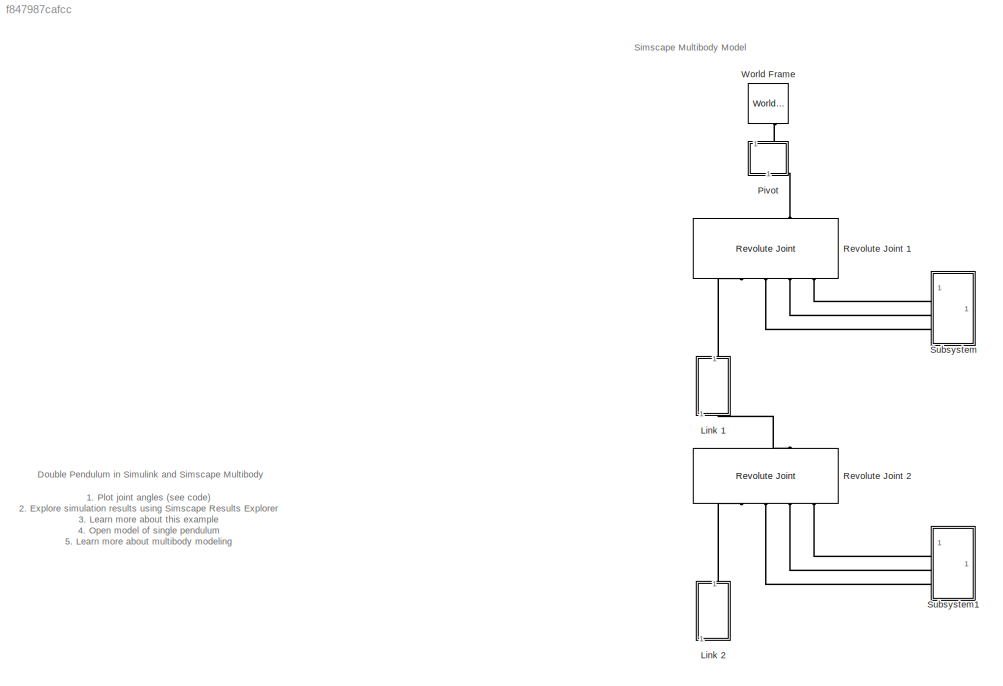
MODEL slx_f847987cafcc
KIND model
CONFIG AbsTol = auto
CONFIG EnableMultiTasking = on
CONFIG FixedStep = auto
CONFIG MaxStep = 1e-2
CONFIG MinStep = auto
CONFIG RelTol = 1e-3
CONFIG SampleTimeConstraint = Unconstrained
CONFIG SolverName = ode15s
CONFIG StartTime = 0.0
CONFIG StopTime = runtime
WORKSPACE source: MATLAB code (in-file)
WORKSPACE m1 = 2
WORKSPACE m2 = 3
WORKSPACE L1 = 1.2
WORKSPACE L2 = 1.6
WORKSPACE g = 9.81
WORKSPACE theta1_0 = 22.5
WORKSPACE theta2_0 = -22.5
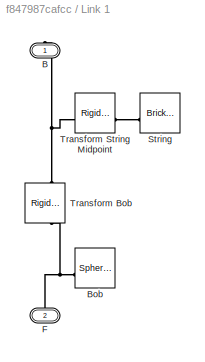
BLOCK [SubSystem] Link 1
  NameLocation = right
  Tag = CustomStyle
BLOCK [PMIOPort] Link 1/B
  NameLocation = right
  Side = Right
BLOCK [Reference] Link 1/Bob  REF=sm_lib/Body Elements/Spherical Solid
  SourceBlock = sm_lib/Body Elements/Spherical Solid
  SourceType = Spherical Solid
BLOCK [PMIOPort] Link 1/F
  NameLocation = right
  Port = 2
  Side = Left
BLOCK [Reference] Link 1/String  REF=sm_lib/Body Elements/Brick Solid
  SourceBlock = sm_lib/Body Elements/Brick Solid
  SourceType = Brick Solid
BLOCK [Reference] Link 1/Transform Bob   REF=sm_lib/Frames and
Transforms/Rigid
Transform
  NameLocation = right
  SourceBlock = sm_lib/Frames and\nTransforms/Rigid\nTransform
  SourceType = Rigid\nTransform
BLOCK [Reference] Link 1/Transform String Midpoint  REF=sm_lib/Frames and
Transforms/Rigid
Transform
  SourceBlock = sm_lib/Frames and\nTransforms/Rigid\nTransform
  SourceType = Rigid\nTransform
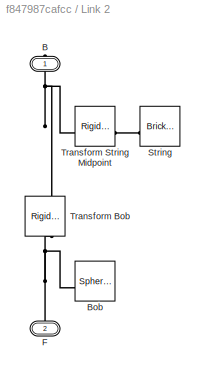
BLOCK [SubSystem] Link 2
  NameLocation = right
  Tag = CustomStyle
BLOCK [PMIOPort] Link 2/B
  NameLocation = right
  Side = Right
BLOCK [Reference] Link 2/Bob  REF=sm_lib/Body Elements/Spherical Solid
  SourceBlock = sm_lib/Body Elements/Spherical Solid
  SourceType = Spherical Solid
BLOCK [PMIOPort] Link 2/F
  NameLocation = right
  Port = 2
  Side = Left
BLOCK [Reference] Link 2/String  REF=sm_lib/Body Elements/Brick Solid
  SourceBlock = sm_lib/Body Elements/Brick Solid
  SourceType = Brick Solid
BLOCK [Reference] Link 2/Transform Bob   REF=sm_lib/Frames and
Transforms/Rigid
Transform
  NameLocation = right
  SourceBlock = sm_lib/Frames and\nTransforms/Rigid\nTransform
  SourceType = Rigid\nTransform
BLOCK [Reference] Link 2/Transform String Midpoint  REF=sm_lib/Frames and
Transforms/Rigid
Transform
  SourceBlock = sm_lib/Frames and\nTransforms/Rigid\nTransform
  SourceType = Rigid\nTransform
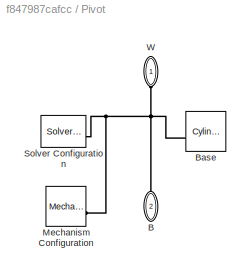
BLOCK [SubSystem] Pivot
  NameLocation = right
  Tag = CustomStyle
BLOCK [PMIOPort] Pivot/B
  NameLocation = right
  Port = 2
  Side = Right
BLOCK [Reference] Pivot/Base  REF=sm_lib/Body Elements/Cylindrical Solid
  SourceBlock = sm_lib/Body Elements/Cylindrical Solid
  SourceType = Cylindrical Solid
BLOCK [Reference] Pivot/Mechanism Configuration  REF=sm_lib/Utilities/Mechanism
Configuration
  SourceBlock = sm_lib/Utilities/Mechanism\nConfiguration
  SourceType = Mechanism\nConfiguration
BLOCK [Reference] Pivot/Solver Configuration  REF=nesl_utility/Solver
Configuration
  SourceBlock = nesl_utility/Solver\nConfiguration
  SourceType = Solver\nConfiguration
BLOCK [PMIOPort] Pivot/W
  NameLocation = right
  Side = Left
BLOCK [Reference] Revolute Joint 1  REF=sm_lib/Joints/Revolute Joint
  NameLocation = right
  SourceBlock = sm_lib/Joints/Revolute Joint
  SourceType = Revolute Joint
BLOCK [Reference] Revolute Joint 2  REF=sm_lib/Joints/Revolute Joint
  NameLocation = right
  SourceBlock = sm_lib/Joints/Revolute Joint
  SourceType = Revolute Joint
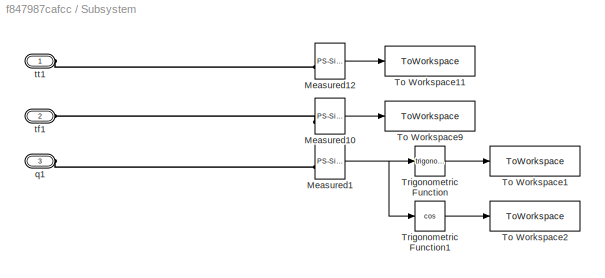
BLOCK [SubSystem] Subsystem
BLOCK [Reference] Subsystem/Measured1  REF=nesl_utility/PS-Simulink
Converter
  NameLocation = top
  SourceBlock = nesl_utility/PS-Simulink\nConverter
  SourceType = PS-Simulink\nConverter
BLOCK [Reference] Subsystem/Measured10  REF=nesl_utility/PS-Simulink
Converter
  NameLocation = top
  SourceBlock = nesl_utility/PS-Simulink\nConverter
  SourceType = PS-Simulink\nConverter
BLOCK [Reference] Subsystem/Measured12  REF=nesl_utility/PS-Simulink
Converter
  NameLocation = top
  SourceBlock = nesl_utility/PS-Simulink\nConverter
  SourceType = PS-Simulink\nConverter
BLOCK [ToWorkspace] Subsystem/To Workspace1
  FixptAsFi = on
  MaxDataPoints = inf
  SampleTime = sampletime
  VariableName = sin1
BLOCK [ToWorkspace] Subsystem/To Workspace11
  FixptAsFi = on
  MaxDataPoints = inf
  SampleTime = sampletime
  VariableName = tt1
BLOCK [ToWorkspace] Subsystem/To Workspace2
  FixptAsFi = on
  MaxDataPoints = inf
  SampleTime = sampletime
  VariableName = cos1
BLOCK [ToWorkspace] Subsystem/To Workspace9
  FixptAsFi = on
  MaxDataPoints = inf
  SampleTime = sampletime
  VariableName = tf1
BLOCK [Trigonometry] Subsystem/Trigonometric Function
BLOCK [Trigonometry] Subsystem/Trigonometric Function1
  Operator = cos
BLOCK [PMIOPort] Subsystem/q1
  Port = 3
  Side = Left
BLOCK [PMIOPort] Subsystem/tf1
  Port = 2
  Side = Left
BLOCK [PMIOPort] Subsystem/tt1
  Side = Left
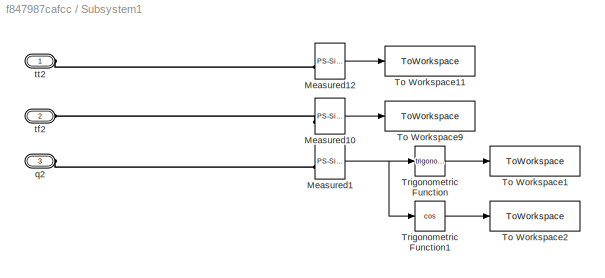
BLOCK [SubSystem] Subsystem1
BLOCK [Reference] Subsystem1/Measured1  REF=nesl_utility/PS-Simulink
Converter
  NameLocation = top
  SourceBlock = nesl_utility/PS-Simulink\nConverter
  SourceType = PS-Simulink\nConverter
BLOCK [Reference] Subsystem1/Measured10  REF=nesl_utility/PS-Simulink
Converter
  NameLocation = top
  SourceBlock = nesl_utility/PS-Simulink\nConverter
  SourceType = PS-Simulink\nConverter
BLOCK [Reference] Subsystem1/Measured12  REF=nesl_utility/PS-Simulink
Converter
  NameLocation = top
  SourceBlock = nesl_utility/PS-Simulink\nConverter
  SourceType = PS-Simulink\nConverter
BLOCK [ToWorkspace] Subsystem1/To Workspace1
  FixptAsFi = on
  MaxDataPoints = inf
  SampleTime = sampletime
  VariableName = sin2
BLOCK [ToWorkspace] Subsystem1/To Workspace11
  FixptAsFi = on
  MaxDataPoints = inf
  SampleTime = sampletime
  VariableName = tt2
BLOCK [ToWorkspace] Subsystem1/To Workspace2
  FixptAsFi = on
  MaxDataPoints = inf
  SampleTime = sampletime
  VariableName = cos2
BLOCK [ToWorkspace] Subsystem1/To Workspace9
  FixptAsFi = on
  MaxDataPoints = inf
  SampleTime = sampletime
  VariableName = tf2
BLOCK [Trigonometry] Subsystem1/Trigonometric Function
BLOCK [Trigonometry] Subsystem1/Trigonometric Function1
  Operator = cos
BLOCK [PMIOPort] Subsystem1/q2
  Port = 3
  Side = Left
BLOCK [PMIOPort] Subsystem1/tf2
  Port = 2
  Side = Left
BLOCK [PMIOPort] Subsystem1/tt2
  Side = Left
BLOCK [Reference] World Frame  REF=sm_lib/Frames and
Transforms/World Frame
  NameLocation = right
  SourceBlock = sm_lib/Frames and\nTransforms/World Frame
  SourceType = World Frame
ANNOTATION (root): 1. Plot joint angles ( see code ) 2. Explore simulation results using Simscape Results Explorer 3. Learn more about this example 4. Open model of single pendulum 5. Learn more about multibody modeling
ANNOTATION (root): Simscape Multibody Model
ANNOTATION (root): Double Pendulum in Simulink and Simscape Multibody
LINE Subsystem/Measured10:1 -> Subsystem/To Workspace9:1
LINE Subsystem/Measured12:1 -> Subsystem/To Workspace11:1
NET Subsystem/Measured1:1 -> Subsystem/Trigonometric Function1:1, Subsystem/Trigonometric Function:1
LINE Subsystem/Trigonometric Function1:1 -> Subsystem/To Workspace2:1
LINE Subsystem/Trigonometric Function:1 -> Subsystem/To Workspace1:1
LINE Subsystem1/Measured10:1 -> Subsystem1/To Workspace9:1
LINE Subsystem1/Measured12:1 -> Subsystem1/To Workspace11:1
NET Subsystem1/Measured1:1 -> Subsystem1/Trigonometric Function1:1, Subsystem1/Trigonometric Function:1
LINE Subsystem1/Trigonometric Function1:1 -> Subsystem1/To Workspace2:1
LINE Subsystem1/Trigonometric Function:1 -> Subsystem1/To Workspace1:1
PNET net1: Link 1/B:RConn1 -- Link 1/Transform Bob :LConn1 -- Link 1/Transform String Midpoint:LConn1
PNET net2: Link 1/Bob:RConn1 -- Link 1/F:RConn1 -- Link 1/Transform Bob :RConn1
PLINE Link 1/String:RConn1 -- Link 1/Transform String Midpoint:RConn1
PLINE Link 1:LConn1 -- Revolute Joint 2:LConn1
PLINE Link 1:RConn1 -- Revolute Joint 1:RConn1
PNET net3: Link 2/B:RConn1 -- Link 2/Transform Bob :LConn1 -- Link 2/Transform String Midpoint:LConn1
PNET net4: Link 2/Bob:RConn1 -- Link 2/F:RConn1 -- Link 2/Transform Bob :RConn1
PLINE Link 2/String:RConn1 -- Link 2/Transform String Midpoint:RConn1
PLINE Link 2:RConn1 -- Revolute Joint 2:RConn1
PNET net5: Pivot/B:RConn1 -- Pivot/Base:RConn1 -- Pivot/Mechanism Configuration:RConn1 -- Pivot/Solver Configuration:RConn1 -- Pivot/W:RConn1
PLINE Pivot:LConn1 -- World Frame:RConn1
PLINE Pivot:RConn1 -- Revolute Joint 1:LConn1
PLINE Revolute Joint 1:RConn2 -- Subsystem:LConn3
PLINE Revolute Joint 1:RConn3 -- Subsystem:LConn2
PLINE Revolute Joint 1:RConn4 -- Subsystem:LConn1
PLINE Revolute Joint 2:RConn2 -- Subsystem1:LConn3
PLINE Revolute Joint 2:RConn3 -- Subsystem1:LConn2
PLINE Revolute Joint 2:RConn4 -- Subsystem1:LConn1
PLINE Subsystem/Measured10:LConn1 -- Subsystem/tf1:RConn1
PLINE Subsystem/Measured12:LConn1 -- Subsystem/tt1:RConn1
PLINE Subsystem/Measured1:LConn1 -- Subsystem/q1:RConn1
PLINE Subsystem1/Measured10:LConn1 -- Subsystem1/tf2:RConn1
PLINE Subsystem1/Measured12:LConn1 -- Subsystem1/tt2:RConn1
PLINE Subsystem1/Measured1:LConn1 -- Subsystem1/q2:RConn1
note: NET lines group one-source signal fan-out (src -> all destinations, sorted); 1:1 wires keep LINE; PNET lines group multi-terminal physical nets as a canonical sorted terminal list (undirected conserving connections); 2-terminal nets keep the pairwise PLINE form
